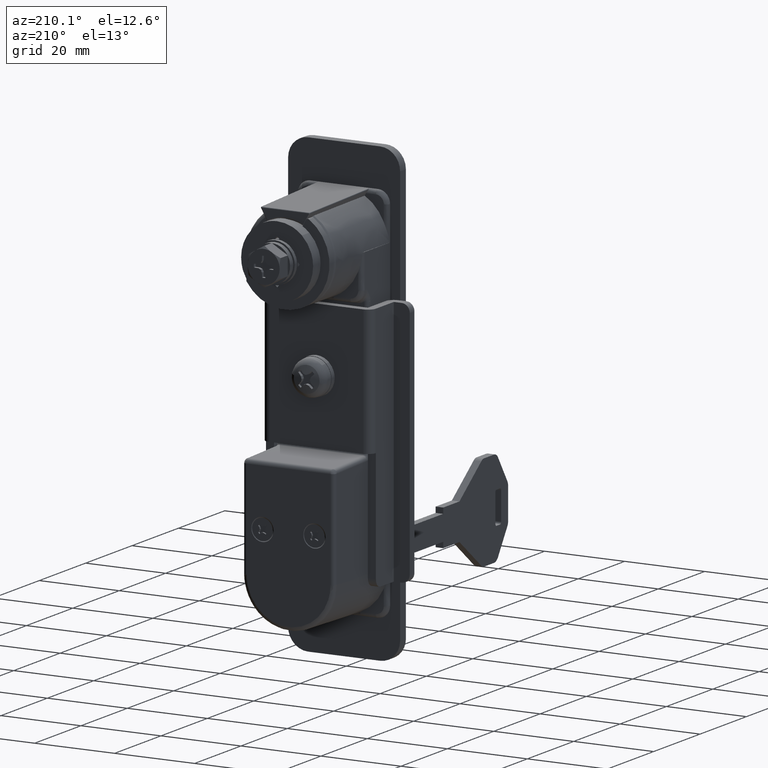
[diagram: clean part render]
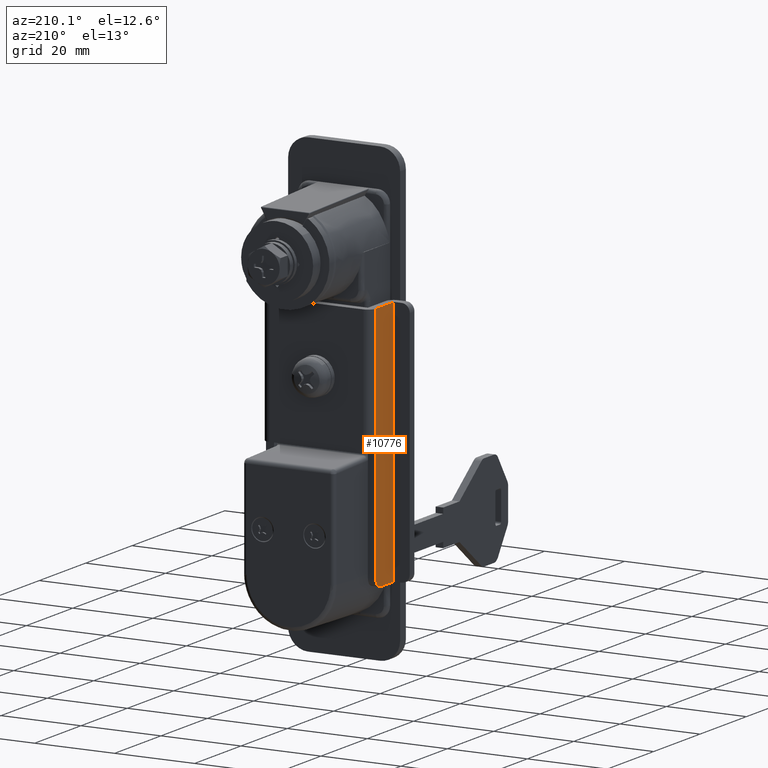
[diagram: same view with one face highlighted and labeled with its STEP entity id]
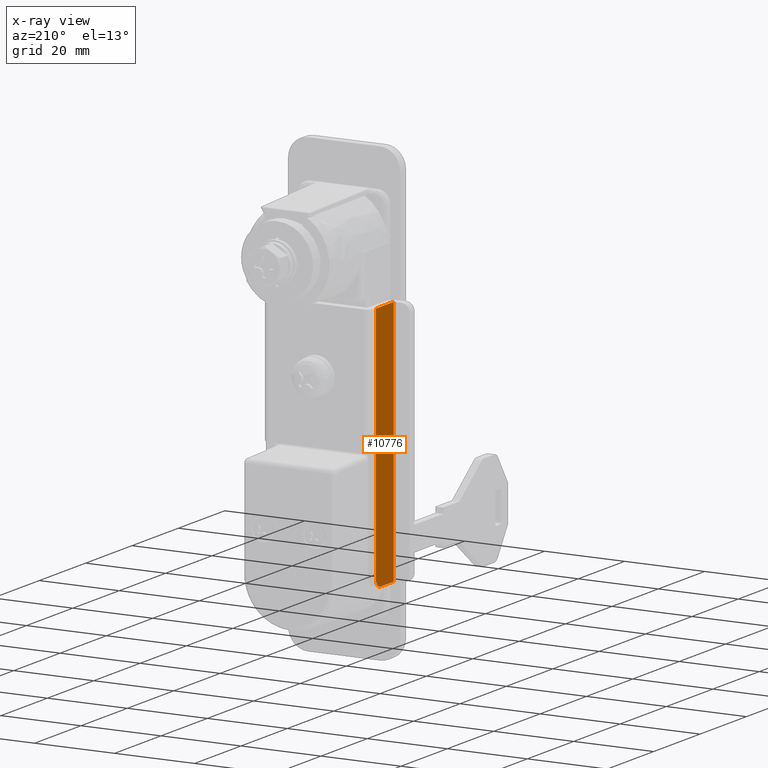
[diagram: x-ray of the same camera — body ghosted, the highlighted face saturated]
A machine part, auxiliary view. The second image highlights one B-rep face of the part: STEP entity #10776.
The next image is the same camera in x-ray: the body ghosted, the highlighted face saturated — about 0% of this face is hidden behind the body in this view.
In plain terms, the highlighted face is a freeform B-spline surface patch.
Its self-contained STEP definition (entity closure, byte-faithful):
#10691=CARTESIAN_POINT('',(-13.749599999999999,3.299994665527350,-74.500000000000000));
#10692=VERTEX_POINT('',#10691);
#10714=CARTESIAN_POINT('',(-13.749599999999999,3.299994665527350,-12.500000000000000));
#10715=VERTEX_POINT('',#10714);
#10721=CARTESIAN_POINT('',(-13.749599999999999,3.299994665527350,-74.500000000000000));
#10722=CARTESIAN_POINT('',(-13.749599999999999,3.299994665527350,-12.500000000000000));
#10723=QUASI_UNIFORM_CURVE('',1,(#10721,#10722),.UNSPECIFIED.,.F.,.U.);
#10724=EDGE_CURVE('',#10692,#10715,#10723,.T.);
#10729=CARTESIAN_POINT('',(-13.749599999999999,2.915379680451451,-77.596899879831966));
#10730=CARTESIAN_POINT('',(-13.749599999999999,2.915379680451451,-9.403098457198446));
#10731=CARTESIAN_POINT('',(-13.749599999999999,11.384609857133340,-77.596899879831966));
#10732=CARTESIAN_POINT('',(-13.749599999999999,11.384609857133340,-9.403098457198446));
#10733=B_SPLINE_SURFACE_WITH_KNOTS('',1,1,((#10729,#10731),(#10730,#10732)),.UNSPECIFIED.,.F.,.F.,.U.,(2,2),(2,2),(0.0,68.193801422633527),(0.0,8.469230176681890),.UNSPECIFIED.);
#10734=CARTESIAN_POINT('',(-13.749600000000120,10.999994665527341,-72.500000000000000));
#10735=VERTEX_POINT('',#10734);
#10736=CARTESIAN_POINT('',(-13.749599999999999,10.999994665527341,-44.500000000000000));
#10737=VERTEX_POINT('',#10736);
#10738=CARTESIAN_POINT('',(-13.749600000000120,10.999994665527341,-72.500000000000000));
#10739=CARTESIAN_POINT('',(-13.749599999999999,10.999994665527341,-44.500000000000000));
#10740=QUASI_UNIFORM_CURVE('',1,(#10738,#10739),.UNSPECIFIED.,.F.,.U.);
#10741=EDGE_CURVE('',#10735,#10737,#10740,.T.);
#10742=ORIENTED_EDGE('',*,*,#10741,.F.);
#10743=CARTESIAN_POINT('',(-13.749599999999999,8.999994665527339,-74.500000000000000));
#10744=VERTEX_POINT('',#10743);
#10745=CARTESIAN_POINT('',(-13.749600000000120,10.999994665527341,-72.500000000000000));
#10746=CARTESIAN_POINT('',(-13.749600000000100,11.000056754415199,-72.696341747527057));
#10747=CARTESIAN_POINT('',(-13.749600000000070,10.936950337861321,-73.121795684219620));
#10748=CARTESIAN_POINT('',(-13.749599999999999,10.660723503990329,-73.670528084229346));
#10749=CARTESIAN_POINT('',(-13.749600000000010,10.233985933604130,-74.107808970160136));
#10750=CARTESIAN_POINT('',(-13.749599999999949,9.687108067986159,-74.417624587624928));
#10751=CARTESIAN_POINT('',(-13.749600000000029,9.245455079386844,-74.500204298552461));
#10752=CARTESIAN_POINT('',(-13.749599999999999,8.999994665527339,-74.500000000000000));
#10753=B_SPLINE_CURVE_WITH_KNOTS('',3,(#10745,#10746,#10747,#10748,#10749,#10750,#10751,#10752),.UNSPECIFIED.,.F.,.U.,(4,1,1,1,1,4),(0.000000332106220,0.589051130125793,1.276326964431018,1.816235832692227,2.405345263376354,3.141671488703101),.UNSPECIFIED.);
#10754=EDGE_CURVE('',#10735,#10744,#10753,.T.);
#10755=ORIENTED_EDGE('',*,*,#10754,.T.);
#10756=CARTESIAN_POINT('',(-13.749599999999999,8.999994665527339,-74.500000000000000));
#10757=CARTESIAN_POINT('',(-13.749599999999999,3.299994665527350,-74.500000000000000));
#10758=QUASI_UNIFORM_CURVE('',1,(#10756,#10757),.UNSPECIFIED.,.F.,.U.);
#10759=EDGE_CURVE('',#10744,#10692,#10758,.T.);
#10760=ORIENTED_EDGE('',*,*,#10759,.T.);
#10761=ORIENTED_EDGE('',*,*,#10724,.T.);
#10762=CARTESIAN_POINT('',(-13.749600000000120,10.999994665527341,-12.500000000000000));
#10763=VERTEX_POINT('',#10762);
#10764=CARTESIAN_POINT('',(-13.749600000000120,10.999994665527341,-12.500000000000000));
#10765=CARTESIAN_POINT('',(-13.749599999999999,3.299994665527350,-12.500000000000000));
#10766=QUASI_UNIFORM_CURVE('',1,(#10764,#10765),.UNSPECIFIED.,.F.,.U.);
#10767=EDGE_CURVE('',#10763,#10715,#10766,.T.);
#10768=ORIENTED_EDGE('',*,*,#10767,.F.);
#10769=CARTESIAN_POINT('',(-13.749599999999999,10.999994665527341,-44.500000000000000));
#10770=CARTESIAN_POINT('',(-13.749600000000120,10.999994665527341,-12.500000000000000));
#10771=QUASI_UNIFORM_CURVE('',1,(#10769,#10770),.UNSPECIFIED.,.F.,.U.);
#10772=EDGE_CURVE('',#10737,#10763,#10771,.T.);
#10773=ORIENTED_EDGE('',*,*,#10772,.F.);
#10774=EDGE_LOOP('',(#10742,#10755,#10760,#10761,#10768,#10773));
#10775=FACE_OUTER_BOUND('',#10774,.T.);
#10776=ADVANCED_FACE('',(#10775),#10733,.T.);